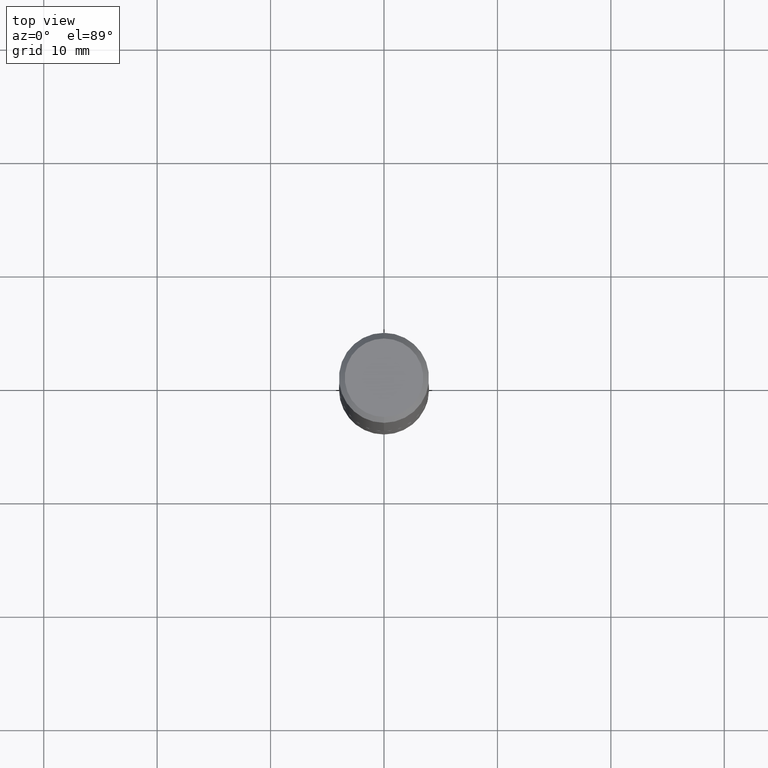
[diagram: clean part render]
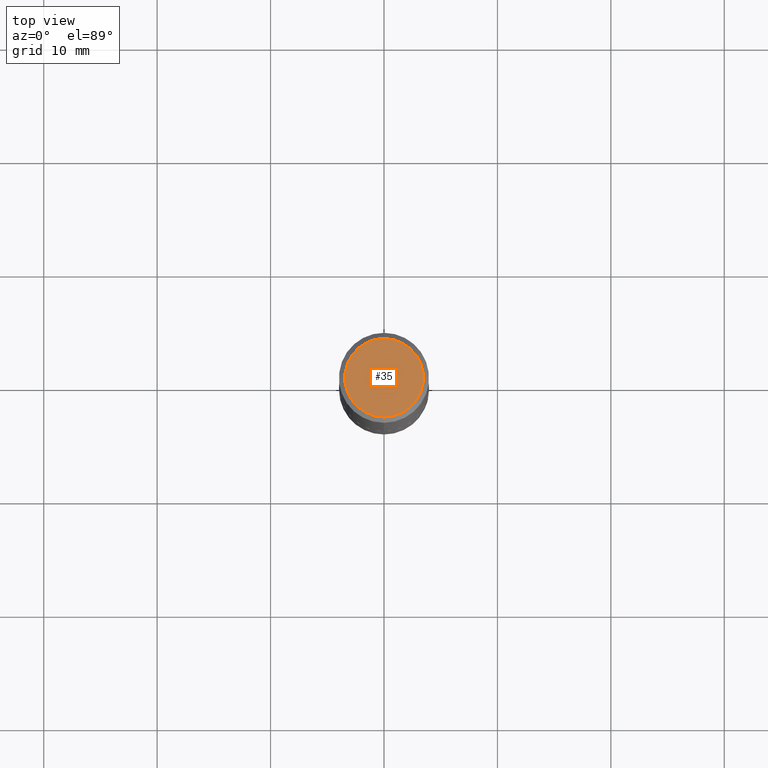
[diagram: same view with one face highlighted and labeled with its STEP entity id]
A machine part, top view. The second image highlights one B-rep face of the part: STEP entity #35.
In plain terms, the highlighted planar face has unit normal (0, -0, -1).
Its self-contained STEP definition (entity closure, byte-faithful):
#6 = AXIS2_PLACEMENT_3D ( 'NONE', #33, #40, #387 ) ;
#7 = DIRECTION ( 'NONE',  ( -2.445472597884424153E-29, 3.491475908913955504E-15, 1.000000000000000000 ) ) ;
#33 = CARTESIAN_POINT ( 'NONE',  ( 1.809228739571165048E-50, -2.583091122506221861E-36, -7.398278521445412385E-22 ) ) ;
#35 = ADVANCED_FACE ( 'NONE', ( #78 ), #259, .F. ) ;
#40 = DIRECTION ( 'NONE',  ( -2.445472597884424153E-29, 3.491475908913955504E-15, 1.000000000000000000 ) ) ;
#78 = FACE_OUTER_BOUND ( 'NONE', #163, .T. ) ;
#85 = CARTESIAN_POINT ( 'NONE',  ( -1.003347832174086081E-15, -0.1362500000000000100, 4.757128527616744041E-16 ) ) ;
#86 = ORIENTED_EDGE ( 'NONE', *, *, #366, .T. ) ;
#101 = CARTESIAN_POINT ( 'NONE',  ( 1.021258291611616664E-15, 0.1362500000000000100, -4.757143324173786552E-16 ) ) ;
#106 = DIRECTION ( 'NONE',  ( -6.982962677686266711E-15, -1.000000000000000000, 3.491475908913955504E-15 ) ) ;
#117 = AXIS2_PLACEMENT_3D ( 'NONE', #156, #7, #106 ) ;
#142 = VERTEX_POINT ( 'NONE', #85 ) ;
#156 = CARTESIAN_POINT ( 'NONE',  ( 1.809228739571165048E-50, -2.583091122506221861E-36, -7.398278521445412385E-22 ) ) ;
#163 = EDGE_LOOP ( 'NONE', ( #86, #175 ) ) ;
#170 = DIRECTION ( 'NONE',  ( 2.445472597884424153E-29, -3.491475908913955110E-15, -1.000000000000000000 ) ) ;
#175 = ORIENTED_EDGE ( 'NONE', *, *, #340, .T. ) ;
#203 = CARTESIAN_POINT ( 'NONE',  ( 9.514286648347539576E-16, 0.1362500000000000100, -4.757139625034526170E-16 ) ) ;
#223 = AXIS2_PLACEMENT_3D ( 'NONE', #203, #170, #328 ) ;
#255 = CIRCLE ( 'NONE', #117, 0.1362500000000000100 ) ;
#259 = PLANE ( 'NONE',  #223 ) ;
#328 = DIRECTION ( 'NONE',  ( 6.982962677686265922E-15, 1.000000000000000000, -3.491475908913955110E-15 ) ) ;
#340 = EDGE_CURVE ( 'NONE', #142, #363, #255, .T. ) ;
#363 = VERTEX_POINT ( 'NONE', #101 ) ;
#366 = EDGE_CURVE ( 'NONE', #363, #142, #395, .T. ) ;
#387 = DIRECTION ( 'NONE',  ( -6.982962677686266711E-15, -1.000000000000000000, 3.491475908913955504E-15 ) ) ;
#395 = CIRCLE ( 'NONE', #6, 0.1362500000000000100 ) ;